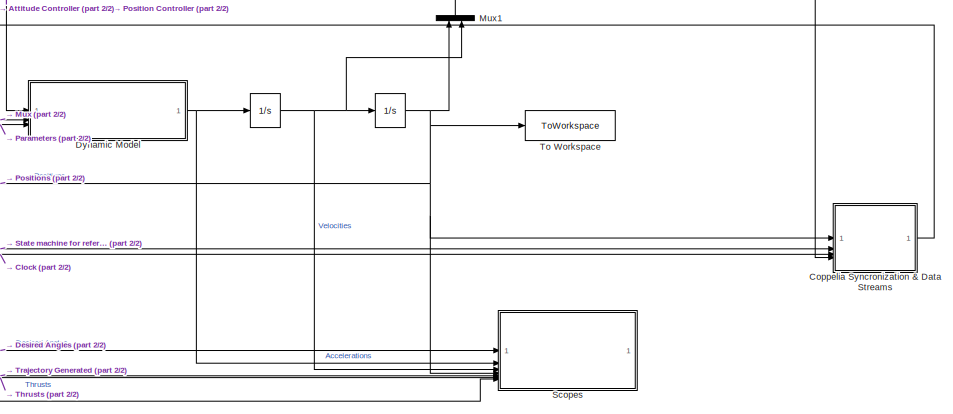
[diagram: root canvas - part 1/2, middle right region]
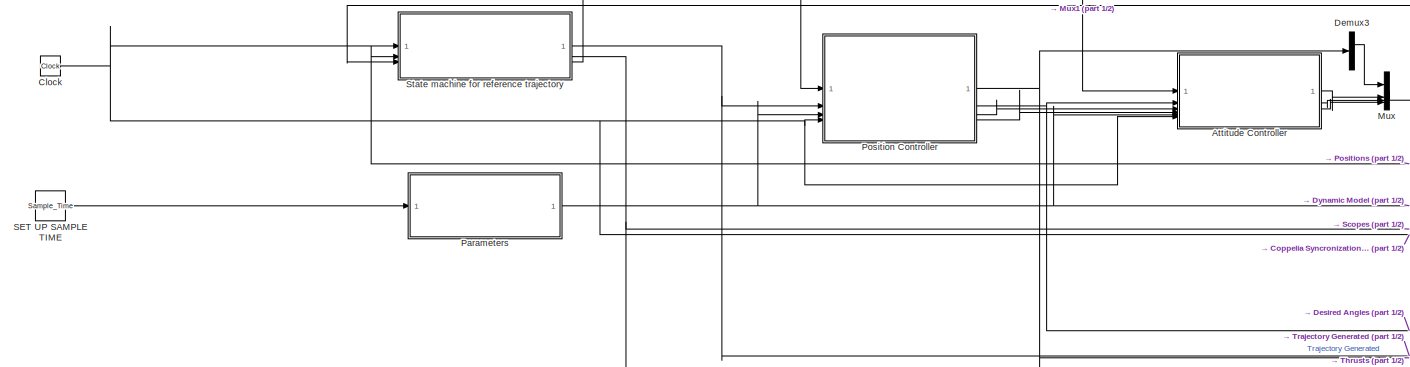
[diagram: root canvas - part 2/2, middle left region]
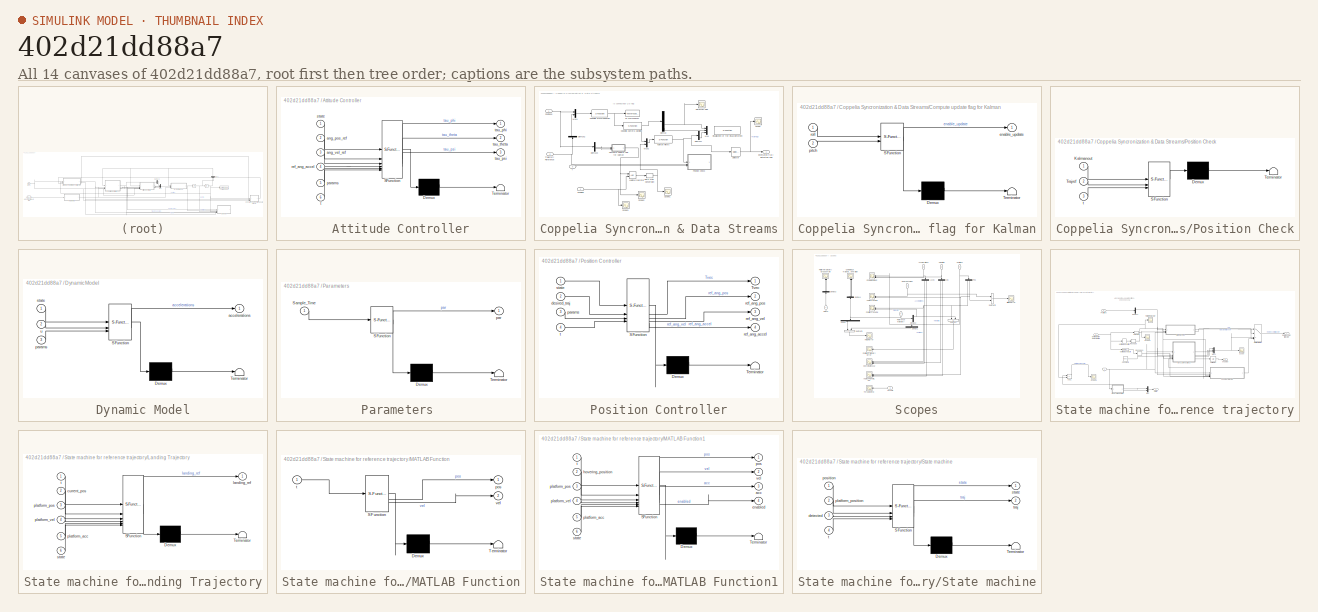
[diagram: thumbnail index - all 14 canvases of the model, root first then tree order]
MODEL slx_402d21dd88a7
KIND model
CONFIG AbsTol = auto
CONFIG EnableMultiTasking = off
CONFIG FixedStep = Sample_Time
CONFIG InitFcn = addpath(genpath(fileparts(which(bdroot))));\n[cspar, ccpar, ckpar] = s_params();
CONFIG MaxStep = auto
CONFIG MinStep = auto
CONFIG RelTol = 1e-3
CONFIG SampleTimeConstraint = Unconstrained
CONFIG SolverName = ode4
CONFIG StartTime = 0.0
CONFIG StopTime = 80
WORKSPACE source: external: MATLAB File  (data not in archive)
BLOCK [Integrator]  
  InitialCondition = [0 0 0 0 0 0]
BLOCK [Integrator]   
  InitialCondition = [0 0 0 0 0 0]
BLOCK [SubSystem] Attitude Controller
  ErrorFcn = Stateflow.Translate.translate
  PermitHierarchicalResolution = ExplicitOnly
  SFBlockType = MATLAB Function
  SystemSampleTime = Sample_Time
  TreatAsAtomicUnit = on
BLOCK [Demux] Attitude Controller/ Demux 
  Outputs = 1
BLOCK [S-Function] Attitude Controller/ SFunction 
  EnableBusSupport = on
  FunctionName = sf_sfun
  PortCounts = [6 4]
  SFcnIsStateOwnerBlock = off
  SFunctionDeploymentMode = off
  Tag = Stateflow S-Function 4
BLOCK [Terminator] Attitude Controller/ Terminator 
BLOCK [Inport] Attitude Controller/ang_pos_ref
  Port = 2
BLOCK [Inport] Attitude Controller/ang_vel_ref
  Port = 3
BLOCK [Inport] Attitude Controller/params
  Port = 5
BLOCK [Inport] Attitude Controller/ref_ang_accel
  Port = 4
BLOCK [Inport] Attitude Controller/state
BLOCK [Inport] Attitude Controller/t
  Port = 6
BLOCK [Outport] Attitude Controller/tau_phi
BLOCK [Outport] Attitude Controller/tau_psi
  Port = 3
BLOCK [Outport] Attitude Controller/tau_theta
  Port = 2
BLOCK [Clock] Clock
  Decimation = 1
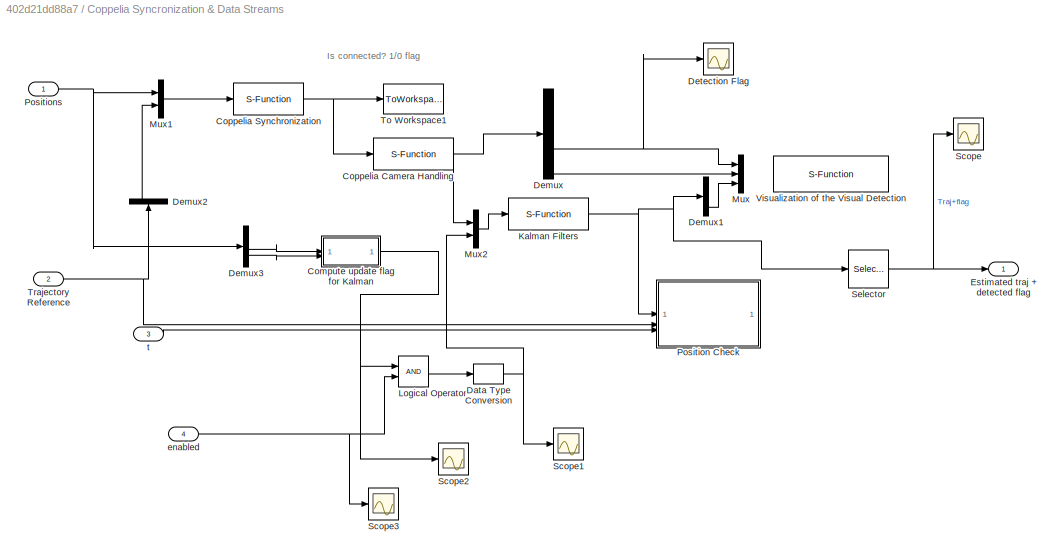
BLOCK [SubSystem] Coppelia Syncronization & Data Streams
BLOCK [SubSystem] Coppelia Syncronization & Data Streams/Compute update flag for Kalman
  ErrorFcn = Stateflow.Translate.translate
  PermitHierarchicalResolution = ExplicitOnly
  SFBlockType = MATLAB Function
  SystemSampleTime = Sample_Time
  TreatAsAtomicUnit = on
BLOCK [Demux] Coppelia Syncronization & Data Streams/Compute update flag for Kalman/ Demux 
  Outputs = 1
BLOCK [S-Function] Coppelia Syncronization & Data Streams/Compute update flag for Kalman/ SFunction 
  EnableBusSupport = on
  FunctionName = sf_sfun
  PortCounts = [2 2]
  SFcnIsStateOwnerBlock = off
  SFunctionDeploymentMode = off
  Tag = Stateflow S-Function 10
BLOCK [Terminator] Coppelia Syncronization & Data Streams/Compute update flag for Kalman/ Terminator 
BLOCK [Outport] Coppelia Syncronization & Data Streams/Compute update flag for Kalman/enable_update
BLOCK [Inport] Coppelia Syncronization & Data Streams/Compute update flag for Kalman/pitch
  Port = 2
BLOCK [Inport] Coppelia Syncronization & Data Streams/Compute update flag for Kalman/roll
BLOCK [S-Function] Coppelia Syncronization & Data Streams/Coppelia Camera Handling
  EnableBusSupport = off
  FunctionName = coppelia_camera
  Parameters = ccpar
  Priority = 1
  SFcnIsStateOwnerBlock = off
  SFunctionDeploymentMode = off
BLOCK [S-Function] Coppelia Syncronization & Data Streams/Coppelia Synchronization
  EnableBusSupport = off
  FunctionName = coppelia_sync
  Parameters = cspar
  Priority = -1
  SFcnIsStateOwnerBlock = off
  SFunctionDeploymentMode = off
BLOCK [DataTypeConversion] Coppelia Syncronization & Data Streams/Data Type Conversion
  OutDataTypeStr = double
  RndMeth = Floor
  SaturateOnIntegerOverflow = off
BLOCK [Demux] Coppelia Syncronization & Data Streams/Demux
  Outputs = 5
BLOCK [Demux] Coppelia Syncronization & Data Streams/Demux1
  Outputs = 8
BLOCK [Demux] Coppelia Syncronization & Data Streams/Demux2
  NameLocation = right
  Outputs = 2
BLOCK [Demux] Coppelia Syncronization & Data Streams/Demux3
  Outputs = 6
BLOCK [Scope] Coppelia Syncronization & Data Streams/Detection Flag
  Floating = off
  NumInputPorts = 1
  ScopeSpecificationString = Simulink.scopes.TimeScopeBlockCfg('CurrentConfiguration', extmgr.ConfigurationSet(extmgr.Configuration('Core','General UI',true,'FigureColor',[0.129411764705882 0.129411764705882 0.129411764705882]),extmgr.Configuration('Core','Source UI',true),extmgr.Configuration('Sources','WiredSimulink',true,'DataLoggingVariableName','ScopeData5'),extmgr.Configuration('Visuals','Time Domain',true,'SerializedDi...<+1799ch>
BLOCK [Outport] Coppelia Syncronization & Data Streams/Estimated traj + detected flag
BLOCK [S-Function] Coppelia Syncronization & Data Streams/Kalman Filters
  EnableBusSupport = off
  FunctionName = coppelia_kalman
  Parameters = ckpar
  Priority = 1
  SFcnIsStateOwnerBlock = off
  SFunctionDeploymentMode = off
BLOCK [Logic] Coppelia Syncronization & Data Streams/Logical Operator
  AllPortsSameDT = off
  OutDataTypeStr = boolean
BLOCK [Mux] Coppelia Syncronization & Data Streams/Mux
  DisplayOption = bar
  Inputs = 3
BLOCK [Mux] Coppelia Syncronization & Data Streams/Mux1
  DisplayOption = bar
  Inputs = 2
BLOCK [Mux] Coppelia Syncronization & Data Streams/Mux2
  DisplayOption = bar
  Inputs = 2
BLOCK [SubSystem] Coppelia Syncronization & Data Streams/Position Check
  ErrorFcn = Stateflow.Translate.translate
  PermitHierarchicalResolution = ExplicitOnly
  SFBlockType = MATLAB Function
  SystemSampleTime = Sample_Time
  TreatAsAtomicUnit = on
BLOCK [Demux] Coppelia Syncronization & Data Streams/Position Check/ Demux 
  Outputs = 1
BLOCK [S-Function] Coppelia Syncronization & Data Streams/Position Check/ SFunction 
  EnableBusSupport = on
  FunctionName = sf_sfun
  PortCounts = [3 1]
  SFcnIsStateOwnerBlock = off
  SFunctionDeploymentMode = off
  Tag = Stateflow S-Function 7
BLOCK [Terminator] Coppelia Syncronization & Data Streams/Position Check/ Terminator 
BLOCK [Inport] Coppelia Syncronization & Data Streams/Position Check/Kalmanout
BLOCK [Inport] Coppelia Syncronization & Data Streams/Position Check/Trajref
  Port = 2
BLOCK [Inport] Coppelia Syncronization & Data Streams/Position Check/t
  Port = 3
BLOCK [Inport] Coppelia Syncronization & Data Streams/Positions
BLOCK [Scope] Coppelia Syncronization & Data Streams/Scope
  Floating = off
  NumInputPorts = 1
  ScopeSpecificationString = Simulink.scopes.TimeScopeBlockCfg('CurrentConfiguration', extmgr.ConfigurationSet(extmgr.Configuration('Core','General UI',true),extmgr.Configuration('Core','Source UI',true),extmgr.Configuration('Sources','WiredSimulink',true,'DataLoggingVariableName','ScopeData2'),extmgr.Configuration('Visuals','Time Domain',true,'SerializedDisplays',{struct('MinYLimReal','-18.46074','MaxYLimReal','19.29827','YL...<+1633ch>
BLOCK [Scope] Coppelia Syncronization & Data Streams/Scope1
  Floating = off
  NumInputPorts = 1
  ScopeSpecificationString = Simulink.scopes.TimeScopeBlockCfg('CurrentConfiguration', extmgr.ConfigurationSet(extmgr.Configuration('Core','General UI',true),extmgr.Configuration('Core','Source UI',true),extmgr.Configuration('Sources','WiredSimulink',true,'DataLoggingVariableName','ScopeData4'),extmgr.Configuration('Visuals','Time Domain',true,'SerializedDisplays',{struct('MinYLimReal','-0.125','MaxYLimReal','1.125','YLabelRe...<+1498ch>
BLOCK [Scope] Coppelia Syncronization & Data Streams/Scope2
  Floating = off
  NumInputPorts = 1
  ScopeSpecificationString = Simulink.scopes.TimeScopeBlockCfg('CurrentConfiguration', extmgr.ConfigurationSet(extmgr.Configuration('Core','General UI',true),extmgr.Configuration('Core','Source UI',true),extmgr.Configuration('Sources','WiredSimulink',true,'DataLoggingVariableName','ScopeData5'),extmgr.Configuration('Visuals','Time Domain',true,'SerializedDisplays',{struct('MinYLimReal','-0.125','MaxYLimReal','1.125','YLabelRe...<+1507ch>
BLOCK [Scope] Coppelia Syncronization & Data Streams/Scope3
  Floating = off
  NumInputPorts = 1
  ScopeSpecificationString = Simulink.scopes.TimeScopeBlockCfg('CurrentConfiguration', extmgr.ConfigurationSet(extmgr.Configuration('Core','General UI',true),extmgr.Configuration('Core','Source UI',true),extmgr.Configuration('Sources','WiredSimulink',true,'DataLoggingVariableName','ScopeData6'),extmgr.Configuration('Visuals','Time Domain',true,'SerializedDisplays',{struct('MinYLimReal','-0.125','MaxYLimReal','1.125','YLabelRe...<+1485ch>
BLOCK [Selector] Coppelia Syncronization & Data Streams/Selector
  IndexOptions = Index vector (dialog)
  Indices = 1:7
  InputPortWidth = 8
  OutputSizes = 1
BLOCK [ToWorkspace] Coppelia Syncronization & Data Streams/To Workspace1
  MaxDataPoints = inf
  SampleTime = -1
  SaveFormat = Timeseries
  VariableName = connflag
BLOCK [Inport] Coppelia Syncronization & Data Streams/Trajectory Reference
  Port = 2
BLOCK [S-Function] Coppelia Syncronization & Data Streams/Visualization of the Visual Detection
  Commented = on
  EnableBusSupport = off
  FunctionName = visualize_detection
  SFcnIsStateOwnerBlock = off
  SFunctionDeploymentMode = off
BLOCK [Inport] Coppelia Syncronization & Data Streams/enabled
  Port = 4
BLOCK [Inport] Coppelia Syncronization & Data Streams/t
  Port = 3
BLOCK [Demux] Demux3
BLOCK [SubSystem] Dynamic Model
  ErrorFcn = Stateflow.Translate.translate
  PermitHierarchicalResolution = ExplicitOnly
  SFBlockType = MATLAB Function
  TreatAsAtomicUnit = on
BLOCK [Demux] Dynamic Model/ Demux 
  Outputs = 1
BLOCK [S-Function] Dynamic Model/ SFunction 
  EnableBusSupport = on
  FunctionName = sf_sfun
  PortCounts = [3 2]
  SFcnIsStateOwnerBlock = off
  SFunctionDeploymentMode = off
  Tag = Stateflow S-Function 5
BLOCK [Terminator] Dynamic Model/ Terminator 
BLOCK [Outport] Dynamic Model/accelerations
BLOCK [Inport] Dynamic Model/params
  Port = 3
BLOCK [Inport] Dynamic Model/state
BLOCK [Inport] Dynamic Model/u
  Port = 2
BLOCK [Mux] Mux
  DisplayOption = bar
BLOCK [Mux] Mux1
  DisplayOption = bar
  Inputs = 2
  NameLocation = right
BLOCK [SubSystem] Parameters 
  ErrorFcn = Stateflow.Translate.translate
  PermitHierarchicalResolution = ExplicitOnly
  SFBlockType = MATLAB Function
  SystemSampleTime = Sample_Time
  TreatAsAtomicUnit = on
BLOCK [Demux] Parameters / Demux 
  Outputs = 1
BLOCK [S-Function] Parameters / SFunction 
  EnableBusSupport = on
  FunctionName = sf_sfun
  PortCounts = [1 2]
  SFcnIsStateOwnerBlock = off
  SFunctionDeploymentMode = off
  Tag = Stateflow S-Function 3
BLOCK [Terminator] Parameters / Terminator 
BLOCK [Inport] Parameters /Sample_Time
BLOCK [Outport] Parameters /par
BLOCK [SubSystem] Position Controller
  ErrorFcn = Stateflow.Translate.translate
  PermitHierarchicalResolution = ExplicitOnly
  SFBlockType = MATLAB Function
  SystemSampleTime = Sample_Time
  TreatAsAtomicUnit = on
BLOCK [Demux] Position Controller/ Demux 
  Outputs = 1
BLOCK [S-Function] Position Controller/ SFunction 
  EnableBusSupport = on
  FunctionName = sf_sfun
  PortCounts = [4 5]
  SFcnIsStateOwnerBlock = off
  SFunctionDeploymentMode = off
  Tag = Stateflow S-Function 2
BLOCK [Terminator] Position Controller/ Terminator 
BLOCK [Outport] Position Controller/Tvec
BLOCK [Inport] Position Controller/desired_traj
  Port = 2
BLOCK [Inport] Position Controller/params
  Port = 3
BLOCK [Outport] Position Controller/ref_ang_accel
  Port = 4
BLOCK [Outport] Position Controller/ref_ang_pos
  Port = 2
BLOCK [Outport] Position Controller/ref_ang_vel
  Port = 3
BLOCK [Inport] Position Controller/state
BLOCK [Inport] Position Controller/t
  Port = 4
BLOCK [Constant] SET UP SAMPLE TIME
  Value = Sample_Time
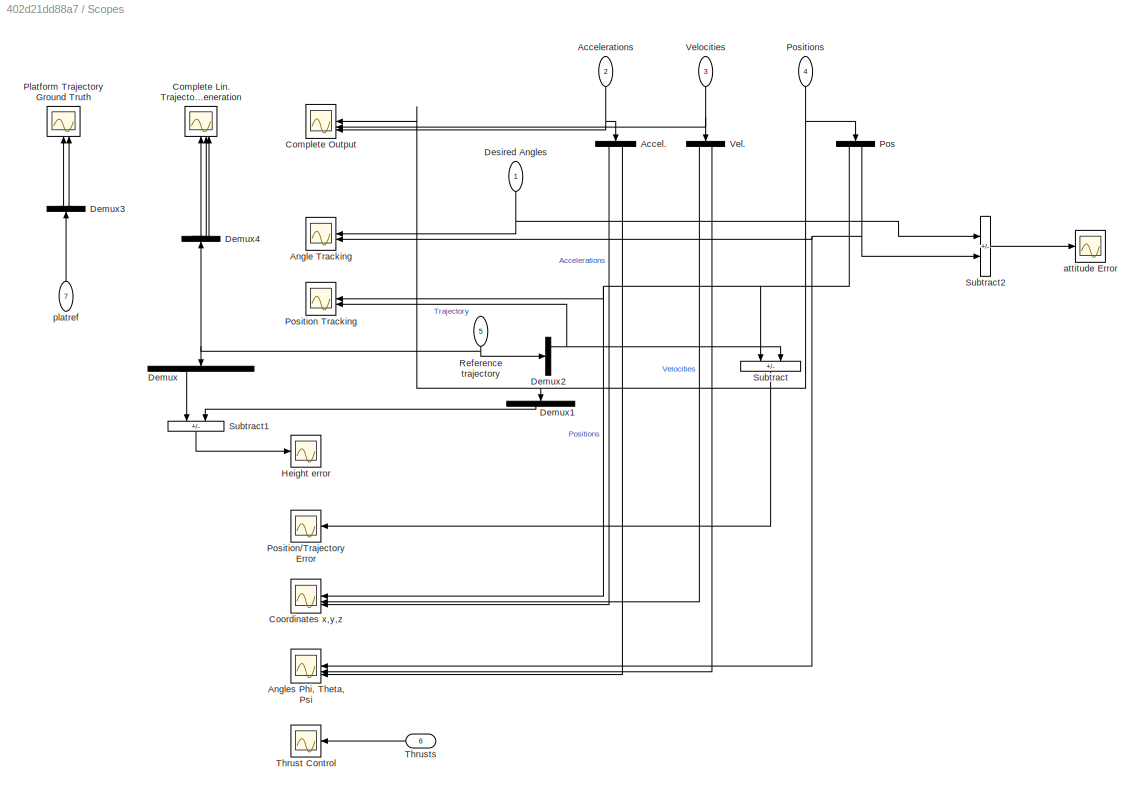
BLOCK [SubSystem] Scopes
BLOCK [Demux] Scopes/Accel.
  NameLocation = left
  Outputs = 2
  Tag = Accelerations
BLOCK [Inport] Scopes/Accelerations
  NameLocation = left
  Port = 2
BLOCK [Scope] Scopes/Angle Tracking
  Floating = off
  NameLocation = top
  NumInputPorts = 2
  ScopeSpecificationString = Simulink.scopes.TimeScopeBlockCfg('CurrentConfiguration', extmgr.ConfigurationSet(extmgr.Configuration('Core','General UI',true,'FigureColor',[0.129411764705882 0.129411764705882 0.129411764705882]),extmgr.Configuration('Core','Source UI',true),extmgr.Configuration('Sources','WiredSimulink',true,'DataLoggingVariableName','ScopeData1'),extmgr.Configuration('Visuals','Time Domain',true,'SerializedDi...<+3351ch>
BLOCK [Scope] Scopes/Angles Phi, Theta, Psi
  Floating = off
  NameLocation = top
  NumInputPorts = 3
  ScopeSpecificationString = Simulink.scopes.TimeScopeBlockCfg('CurrentConfiguration', extmgr.ConfigurationSet(extmgr.Configuration('Core','General UI',true),extmgr.Configuration('Core','Source UI',true),extmgr.Configuration('Sources','WiredSimulink',true,'DataLoggingVariableName','ScopeData2','SampleTime','Sample_Time'),extmgr.Configuration('Visuals','Time Domain',true,'InputProcessing','FrameProcessing','SerializedDisplays'...<+3243ch>
BLOCK [Scope] Scopes/Complete Lin. Trajectory Generation
  Floating = off
  NameLocation = right
  NumInputPorts = 3
  ScopeSpecificationString = Simulink.scopes.TimeScopeBlockCfg('CurrentConfiguration', extmgr.ConfigurationSet(extmgr.Configuration('Core','General UI',true,'FigureColor',[0.129411764705882 0.129411764705882 0.129411764705882]),extmgr.Configuration('Core','Source UI',true),extmgr.Configuration('Sources','WiredSimulink',true),extmgr.Configuration('Visuals','Time Domain',true,'SerializedDisplays',{struct('MinYLimReal','-17.6224...<+4540ch>
BLOCK [Scope] Scopes/Complete Output
  Floating = off
  NameLocation = top
  NumInputPorts = 3
  ScopeSpecificationString = Simulink.scopes.TimeScopeBlockCfg('CurrentConfiguration', extmgr.ConfigurationSet(extmgr.Configuration('Core','General UI',true),extmgr.Configuration('Core','Source UI',true),extmgr.Configuration('Sources','WiredSimulink',true,'DataLoggingVariableName','ScopeData3','SampleTime','Sample_Time'),extmgr.Configuration('Visuals','Time Domain',true,'InputProcessing','FrameProcessing','SerializedDisplays'...<+3426ch>
BLOCK [Scope] Scopes/Coordinates x,y,z
  Floating = off
  NameLocation = top
  NumInputPorts = 3
  ScopeSpecificationString = Simulink.scopes.TimeScopeBlockCfg('CurrentConfiguration', extmgr.ConfigurationSet(extmgr.Configuration('Core','General UI',true,'FigureColor',[0.129411764705882 0.129411764705882 0.129411764705882]),extmgr.Configuration('Core','Source UI',true),extmgr.Configuration('Sources','WiredSimulink',true,'DataLoggingVariableName','ScopeData1','SampleTime','Sample_Time'),extmgr.Configuration('Visuals','Time...<+4657ch>
BLOCK [Demux] Scopes/Demux
  NameLocation = left
  Outputs = 9
BLOCK [Demux] Scopes/Demux1
  NameLocation = left
  Outputs = 6
BLOCK [Demux] Scopes/Demux2
  Outputs = 3
BLOCK [Demux] Scopes/Demux3
  NameLocation = right
  Outputs = 2
BLOCK [Demux] Scopes/Demux4
  NameLocation = right
  Outputs = 3
BLOCK [Inport] Scopes/Desired Angles
  NameLocation = left
BLOCK [Scope] Scopes/Height error
  Floating = off
  NumInputPorts = 1
  ScopeSpecificationString = Simulink.scopes.TimeScopeBlockCfg('CurrentConfiguration', extmgr.ConfigurationSet(extmgr.Configuration('Core','General UI',true,'DisplayFullSourceName',false,'ShowMainToolbar',true,'FigureColor',[0.129411764705882 0.129411764705882 0.129411764705882]),extmgr.Configuration('Sources','WiredSimulink',true,'DataLogging',false,'DataLoggingVariableName','ScopeData6','DataLoggingLimitDataPoints',false,'D...<+2256ch>
BLOCK [Scope] Scopes/Platform Trajectory Ground Truth
  Floating = off
  NameLocation = right
  NumInputPorts = 2
  ScopeSpecificationString = Simulink.scopes.TimeScopeBlockCfg('CurrentConfiguration', extmgr.ConfigurationSet(extmgr.Configuration('Core','General UI',true,'DisplayFullSourceName',false,'ShowMainToolbar',true,'FigureColor',[0.129411764705882 0.129411764705882 0.129411764705882]),extmgr.Configuration('Sources','WiredSimulink',true,'DataLogging',false,'DataLoggingVariableName','ScopeData8','DataLoggingLimitDataPoints',false,'D...<+3015ch>
BLOCK [Demux] Scopes/Pos
  NameLocation = left
  Outputs = 2
BLOCK [Scope] Scopes/Position Tracking
  Floating = off
  NameLocation = top
  NumInputPorts = 2
  ScopeSpecificationString = Simulink.scopes.TimeScopeBlockCfg('CurrentConfiguration', extmgr.ConfigurationSet(extmgr.Configuration('Core','General UI',true,'FigureColor',[0.129411764705882 0.129411764705882 0.129411764705882]),extmgr.Configuration('Core','Source UI',true),extmgr.Configuration('Sources','WiredSimulink',true,'DataLoggingVariableName','ScopeData1','SampleTime','Sample_Time'),extmgr.Configuration('Visuals','Time...<+3374ch>
BLOCK [Scope] Scopes/Position//Trajectory Error
  Floating = off
  NameLocation = top
  NumInputPorts = 1
  ScopeSpecificationString = Simulink.scopes.TimeScopeBlockCfg('CurrentConfiguration', extmgr.ConfigurationSet(extmgr.Configuration('Core','General UI',true,'FigureColor',[0.129411764705882 0.129411764705882 0.129411764705882]),extmgr.Configuration('Core','Source UI',true),extmgr.Configuration('Sources','WiredSimulink',true,'DataLoggingVariableName','ScopeData1'),extmgr.Configuration('Visuals','Time Domain',true,'SerializedDi...<+1877ch>
BLOCK [Inport] Scopes/Positions
  NameLocation = left
  Port = 4
BLOCK [Inport] Scopes/Reference trajectory
  NameLocation = left
  Port = 5
BLOCK [Sum] Scopes/Subtract
  IconShape = rectangular
  Inputs = +-
  NameLocation = left
BLOCK [Sum] Scopes/Subtract1
  IconShape = rectangular
  Inputs = +-
  NameLocation = left
BLOCK [Sum] Scopes/Subtract2
  IconShape = rectangular
  Inputs = +-
BLOCK [Scope] Scopes/Thrust Control
  Floating = off
  NameLocation = top
  NumInputPorts = 1
  ScopeSpecificationString = Simulink.scopes.TimeScopeBlockCfg('CurrentConfiguration', extmgr.ConfigurationSet(extmgr.Configuration('Core','General UI',true,'FigureColor',[0.129411764705882 0.129411764705882 0.129411764705882]),extmgr.Configuration('Core','Source UI',true),extmgr.Configuration('Sources','WiredSimulink',true,'DataLoggingVariableName','ScopeData7'),extmgr.Configuration('Visuals','Time Domain',true,'SerializedDi...<+2266ch>
BLOCK [Inport] Scopes/Thrusts
  NameLocation = top
  Port = 6
BLOCK [Demux] Scopes/Vel.
  NameLocation = left
  Outputs = 2
BLOCK [Inport] Scopes/Velocities
  NameLocation = left
  Port = 3
BLOCK [Scope] Scopes/attitude Error
  Floating = off
  NumInputPorts = 1
  ScopeSpecificationString = Simulink.scopes.TimeScopeBlockCfg('CurrentConfiguration', extmgr.ConfigurationSet(extmgr.Configuration('Core','General UI',true,'FigureColor',[0.129411764705882 0.129411764705882 0.129411764705882]),extmgr.Configuration('Core','Source UI',true),extmgr.Configuration('Sources','WiredSimulink',true,'DataLoggingVariableName','ScopeData2'),extmgr.Configuration('Visuals','Time Domain',true,'SerializedDi...<+1895ch>
BLOCK [Inport] Scopes/platref
  NameLocation = right
  Port = 7
BLOCK [SubSystem] State machine for reference trajectory
BLOCK [Sum] State machine for reference trajectory/Add1
  IconShape = rectangular
  Inputs = +-
BLOCK [Constant] State machine for reference trajectory/Constant1
  Value = [0 0 0]
BLOCK [Demux] State machine for reference trajectory/Demux4
  Outputs = 2
BLOCK [Inport] State machine for reference trajectory/Estimated traj + detected flag
  Port = 3
BLOCK [SubSystem] State machine for reference trajectory/Landing Trajectory
  ErrorFcn = Stateflow.Translate.translate
  PermitHierarchicalResolution = ExplicitOnly
  SFBlockType = MATLAB Function
  SystemSampleTime = Sample_Time
  TreatAsAtomicUnit = on
BLOCK [Demux] State machine for reference trajectory/Landing Trajectory/ Demux 
  Outputs = 1
BLOCK [S-Function] State machine for reference trajectory/Landing Trajectory/ SFunction 
  EnableBusSupport = on
  FunctionName = sf_sfun
  PortCounts = [6 2]
  SFcnIsStateOwnerBlock = off
  SFunctionDeploymentMode = off
  Tag = Stateflow S-Function 9
BLOCK [Terminator] State machine for reference trajectory/Landing Trajectory/ Terminator 
BLOCK [Inport] State machine for reference trajectory/Landing Trajectory/current_pos
  Port = 2
BLOCK [Outport] State machine for reference trajectory/Landing Trajectory/landing_ref
BLOCK [Inport] State machine for reference trajectory/Landing Trajectory/platform_acc
  Port = 5
BLOCK [Inport] State machine for reference trajectory/Landing Trajectory/platform_pos
  Port = 3
BLOCK [Inport] State machine for reference trajectory/Landing Trajectory/platform_vel
  Port = 4
BLOCK [Inport] State machine for reference trajectory/Landing Trajectory/state
  Port = 6
BLOCK [Inport] State machine for reference trajectory/Landing Trajectory/t
BLOCK [SubSystem] State machine for reference trajectory/MATLAB Function
  ErrorFcn = Stateflow.Translate.translate
  PermitHierarchicalResolution = ExplicitOnly
  SFBlockType = MATLAB Function
  TreatAsAtomicUnit = on
BLOCK [Demux] State machine for reference trajectory/MATLAB Function/ Demux 
  Outputs = 1
BLOCK [S-Function] State machine for reference trajectory/MATLAB Function/ SFunction 
  EnableBusSupport = on
  FunctionName = sf_sfun
  PortCounts = [1 3]
  SFcnIsStateOwnerBlock = off
  SFunctionDeploymentMode = off
  Tag = Stateflow S-Function 8
BLOCK [Terminator] State machine for reference trajectory/MATLAB Function/ Terminator 
BLOCK [Outport] State machine for reference trajectory/MATLAB Function/pos
BLOCK [Inport] State machine for reference trajectory/MATLAB Function/t
BLOCK [Outport] State machine for reference trajectory/MATLAB Function/vel
  Port = 2
BLOCK [SubSystem] State machine for reference trajectory/MATLAB Function1
  ErrorFcn = Stateflow.Translate.translate
  PermitHierarchicalResolution = ExplicitOnly
  SFBlockType = MATLAB Function
  SystemSampleTime = Sample_Time
  TreatAsAtomicUnit = on
BLOCK [Demux] State machine for reference trajectory/MATLAB Function1/ Demux 
  Outputs = 1
BLOCK [S-Function] State machine for reference trajectory/MATLAB Function1/ SFunction 
  EnableBusSupport = on
  FunctionName = sf_sfun
  PortCounts = [6 5]
  SFcnIsStateOwnerBlock = off
  SFunctionDeploymentMode = off
  Tag = Stateflow S-Function 1
BLOCK [Terminator] State machine for reference trajectory/MATLAB Function1/ Terminator 
BLOCK [Outport] State machine for reference trajectory/MATLAB Function1/acc
  Port = 3
BLOCK [Outport] State machine for reference trajectory/MATLAB Function1/enabled
  Port = 4
BLOCK [Inport] State machine for reference trajectory/MATLAB Function1/hovering_position
  Port = 2
BLOCK [Inport] State machine for reference trajectory/MATLAB Function1/platform_acc
  Port = 5
BLOCK [Inport] State machine for reference trajectory/MATLAB Function1/platform_pos
  Port = 3
BLOCK [Inport] State machine for reference trajectory/MATLAB Function1/platform_vel
  Port = 4
BLOCK [Outport] State machine for reference trajectory/MATLAB Function1/pos
BLOCK [Inport] State machine for reference trajectory/MATLAB Function1/state
  Port = 6
BLOCK [Inport] State machine for reference trajectory/MATLAB Function1/t
BLOCK [Outport] State machine for reference trajectory/MATLAB Function1/vel
  Port = 2
BLOCK [MultiPortSwitch] State machine for reference trajectory/Multiport Switch
  InputSameDT = off
  Inputs = 4
  SaturateOnIntegerOverflow = off
BLOCK [Mux] State machine for reference trajectory/Mux
  DisplayOption = bar
  Inputs = 2
BLOCK [Mux] State machine for reference trajectory/Mux1
  DisplayOption = bar
  Inputs = 3
BLOCK [Scope] State machine for reference trajectory/Platform Trajectory
  Floating = off
  NumInputPorts = 1
  ScopeSpecificationString = Simulink.scopes.TimeScopeBlockCfg('CurrentConfiguration', extmgr.ConfigurationSet(extmgr.Configuration('Core','General UI',true,'FigureColor',[0.129411764705882 0.129411764705882 0.129411764705882]),extmgr.Configuration('Core','Source UI',true),extmgr.Configuration('Sources','WiredSimulink',true,'DataLoggingVariableName','ScopeData4'),extmgr.Configuration('Visuals','Time Domain',true,'SerializedDi...<+2099ch>
BLOCK [Inport] State machine for reference trajectory/Positions
  Port = 2
BLOCK [Outport] State machine for reference trajectory/Reference for trajectory
BLOCK [Reshape] State machine for reference trajectory/Reshape
  OutputDimensionality = Row vector (2-D)
BLOCK [Reshape] State machine for reference trajectory/Reshape1
  OutputDimensionality = Row vector (2-D)
BLOCK [Scope] State machine for reference trajectory/Scope
  Floating = off
  NumInputPorts = 1
  ScopeSpecificationString = Simulink.scopes.TimeScopeBlockCfg('CurrentConfiguration', extmgr.ConfigurationSet(extmgr.Configuration('Core','General UI',true),extmgr.Configuration('Core','Source UI',true),extmgr.Configuration('Sources','WiredSimulink',true,'DataLoggingVariableName','ScopeData1'),extmgr.Configuration('Visuals','Time Domain',true,'SerializedDisplays',{struct('MinYLimReal','-5.01169','MaxYLimReal','7.94318','YLab...<+1963ch>
BLOCK [Scope] State machine for reference trajectory/Scope2
  Floating = off
  NumInputPorts = 1
  ScopeSpecificationString = Simulink.scopes.TimeScopeBlockCfg('CurrentConfiguration', extmgr.ConfigurationSet(extmgr.Configuration('Core','General UI',true),extmgr.Configuration('Core','Source UI',true),extmgr.Configuration('Sources','WiredSimulink',true,'DataLoggingVariableName','ScopeData1'),extmgr.Configuration('Visuals','Time Domain',true,'SerializedDisplays',{struct('MinYLimReal','-0.125','MaxYLimReal','1.125','YLabelRe...<+1545ch>
BLOCK [Scope] State machine for reference trajectory/Scope3
  Floating = off
  NumInputPorts = 1
  ScopeSpecificationString = Simulink.scopes.TimeScopeBlockCfg('CurrentConfiguration', extmgr.ConfigurationSet(extmgr.Configuration('Core','General UI',true),extmgr.Configuration('Core','Source UI',true),extmgr.Configuration('Sources','WiredSimulink',true,'DataLoggingVariableName','ScopeData1'),extmgr.Configuration('Visuals','Time Domain',true,'SerializedDisplays',{struct('MinYLimReal','-1.10941','MaxYLimReal','0.83364','YLab...<+1703ch>
BLOCK [SubSystem] State machine for reference trajectory/State machine
  ErrorFcn = Stateflow.Translate.translate
  PermitHierarchicalResolution = ExplicitOnly
  SFBlockType = MATLAB Function
  SystemSampleTime = Sample_Time
  TreatAsAtomicUnit = on
BLOCK [Demux] State machine for reference trajectory/State machine/ Demux 
  Outputs = 1
BLOCK [S-Function] State machine for reference trajectory/State machine/ SFunction 
  EnableBusSupport = on
  FunctionName = sf_sfun
  PortCounts = [4 3]
  SFcnIsStateOwnerBlock = off
  SFunctionDeploymentMode = off
  Tag = Stateflow S-Function 6
BLOCK [Terminator] State machine for reference trajectory/State machine/ Terminator 
BLOCK [Inport] State machine for reference trajectory/State machine/detected
  Port = 3
BLOCK [Inport] State machine for reference trajectory/State machine/platform_position
  Port = 2
BLOCK [Inport] State machine for reference trajectory/State machine/position
BLOCK [Outport] State machine for reference trajectory/State machine/state
BLOCK [Inport] State machine for reference trajectory/State machine/t
  Port = 4
BLOCK [Outport] State machine for reference trajectory/State machine/traj
  Port = 2
BLOCK [UnitDelay] State machine for reference trajectory/Unit Delay
  HasFrameUpgradeWarning = on
  SampleTime = Sample_Time
BLOCK [Selector] State machine for reference trajectory/detected
  IndexOptions = Index vector (dialog)
  Indices = [7]
  InputPortWidth = 7
  OutputSizes = 1
BLOCK [Outport] State machine for reference trajectory/enabled
  Port = 3
BLOCK [Selector] State machine for reference trajectory/estimated position
  IndexOptions = Index vector (dialog)
  Indices = [1 2 3]
  InputPortWidth = 7
  OutputSizes = 1
BLOCK [Selector] State machine for reference trajectory/estimated velocity
  IndexOptions = Index vector (dialog)
  Indices = 4:6
  InputPortWidth = 7
  OutputSizes = 1
BLOCK [Outport] State machine for reference trajectory/platref
  Port = 2
BLOCK [Inport] State machine for reference trajectory/t
BLOCK [ToWorkspace] To Workspace
  FixptAsFi = on
  MaxDataPoints = inf
  SampleTime = -1
  SaveFormat = Structure With Time
  VariableName = quadrotor_states
ANNOTATION Coppelia Syncronization & Data Streams: Is connected? 1/0 flag
ANNOTATION State machine for reference trajectory: #Exclude the Angular Positions, only keeps X,Y,Z
NET   :1 -> Coppelia Syncronization & Data Streams:1, Mux1:1, Scopes:4, State machine for reference trajectory:2, To Workspace:1
NET  :1 ->   :1, Mux1:2, Scopes:3
LINE Attitude Controller:1 -> Mux:2
LINE Attitude Controller:2 -> Mux:3
LINE Attitude Controller:3 -> Mux:4
NET Clock:1 -> Attitude Controller:6, Coppelia Syncronization & Data Streams:3, Position Controller:4, State machine for reference trajectory:1
NET Coppelia Syncronization & Data Streams/Compute update flag for Kalman:1 -> Coppelia Syncronization & Data Streams/Logical Operator:1, Coppelia Syncronization & Data Streams/Scope2:1
NET Coppelia Syncronization & Data Streams/Coppelia Camera Handling:1 -> Coppelia Syncronization & Data Streams/Demux:1, Coppelia Syncronization & Data Streams/Mux2:1
NET Coppelia Syncronization & Data Streams/Coppelia Synchronization:1 -> Coppelia Syncronization & Data Streams/Coppelia Camera Handling:1, Coppelia Syncronization & Data Streams/To Workspace1:1
NET Coppelia Syncronization & Data Streams/Data Type Conversion:1 -> Coppelia Syncronization & Data Streams/Mux2:2, Coppelia Syncronization & Data Streams/Scope1:1
LINE Coppelia Syncronization & Data Streams/Demux1:7 -> Coppelia Syncronization & Data Streams/Mux:3
LINE Coppelia Syncronization & Data Streams/Demux2:1 -> Coppelia Syncronization & Data Streams/Mux1:2
LINE Coppelia Syncronization & Data Streams/Demux3:4 -> Coppelia Syncronization & Data Streams/Compute update flag for Kalman:1
LINE Coppelia Syncronization & Data Streams/Demux3:5 -> Coppelia Syncronization & Data Streams/Compute update flag for Kalman:2
NET Coppelia Syncronization & Data Streams/Demux:4 -> Coppelia Syncronization & Data Streams/Detection Flag:1, Coppelia Syncronization & Data Streams/Mux:1
LINE Coppelia Syncronization & Data Streams/Demux:5 -> Coppelia Syncronization & Data Streams/Mux:2
NET Coppelia Syncronization & Data Streams/Kalman Filters:1 -> Coppelia Syncronization & Data Streams/Demux1:1, Coppelia Syncronization & Data Streams/Position Check:1, Coppelia Syncronization & Data Streams/Selector:1
LINE Coppelia Syncronization & Data Streams/Logical Operator:1 -> Coppelia Syncronization & Data Streams/Data Type Conversion:1
LINE Coppelia Syncronization & Data Streams/Mux1:1 -> Coppelia Syncronization & Data Streams/Coppelia Synchronization:1
LINE Coppelia Syncronization & Data Streams/Mux2:1 -> Coppelia Syncronization & Data Streams/Kalman Filters:1
NET Coppelia Syncronization & Data Streams/Positions:1 -> Coppelia Syncronization & Data Streams/Demux3:1, Coppelia Syncronization & Data Streams/Mux1:1
NET Coppelia Syncronization & Data Streams/Selector:1 -> Coppelia Syncronization & Data Streams/Estimated traj + detected flag:1, Coppelia Syncronization & Data Streams/Scope:1
NET Coppelia Syncronization & Data Streams/Trajectory Reference:1 -> Coppelia Syncronization & Data Streams/Demux2:1, Coppelia Syncronization & Data Streams/Position Check:2
NET Coppelia Syncronization & Data Streams/enabled:1 -> Coppelia Syncronization & Data Streams/Logical Operator:2, Coppelia Syncronization & Data Streams/Scope3:1
LINE Coppelia Syncronization & Data Streams/t:1 -> Coppelia Syncronization & Data Streams/Position Check:3
LINE Coppelia Syncronization & Data Streams:1 -> State machine for reference trajectory:3
LINE Demux3:1 -> Mux:1
NET Dynamic Model:1 ->  :1, Scopes:2
NET Mux1:1 -> Attitude Controller:1, Dynamic Model:1, Position Controller:1
LINE Mux:1 -> Dynamic Model:2
NET Parameters :1 -> Attitude Controller:5, Dynamic Model:3, Position Controller:3
NET Position Controller:1 -> Demux3:1, Scopes:6
NET Position Controller:2 -> Attitude Controller:2, Scopes:1
LINE Position Controller:3 -> Attitude Controller:3
LINE Position Controller:4 -> Attitude Controller:4
LINE SET UP SAMPLE TIME:1 -> Parameters :1
LINE Scopes/Accel.:1 -> Scopes/Coordinates x,y,z:3
LINE Scopes/Accel.:2 -> Scopes/Angles Phi, Theta, Psi:3
NET Scopes/Accelerations:1 -> Scopes/Accel.:1, Scopes/Complete Output:3
LINE Scopes/Demux1:3 -> Scopes/Subtract1:2
NET Scopes/Demux2:1 -> Scopes/Position Tracking:2, Scopes/Subtract:2
LINE Scopes/Demux3:1 -> Scopes/Platform Trajectory Ground Truth:1
LINE Scopes/Demux3:2 -> Scopes/Platform Trajectory Ground Truth:2
LINE Scopes/Demux4:1 -> Scopes/Complete Lin. Trajectory Generation:1
LINE Scopes/Demux4:2 -> Scopes/Complete Lin. Trajectory Generation:2
LINE Scopes/Demux4:3 -> Scopes/Complete Lin. Trajectory Generation:3
LINE Scopes/Demux:3 -> Scopes/Subtract1:1
NET Scopes/Desired Angles:1 -> Scopes/Angle Tracking:1, Scopes/Subtract2:1
NET Scopes/Pos:1 -> Scopes/Coordinates x,y,z:1, Scopes/Position Tracking:1, Scopes/Subtract:1
NET Scopes/Pos:2 -> Scopes/Angle Tracking:2, Scopes/Angles Phi, Theta, Psi:1, Scopes/Subtract2:2
NET Scopes/Positions:1 -> Scopes/Complete Output:1, Scopes/Demux1:1, Scopes/Pos:1
NET Scopes/Reference trajectory:1 -> Scopes/Demux2:1, Scopes/Demux4:1, Scopes/Demux:1
LINE Scopes/Subtract1:1 -> Scopes/Height error:1
LINE Scopes/Subtract2:1 -> Scopes/attitude Error:1
LINE Scopes/Subtract:1 -> Scopes/Position//Trajectory Error:1
LINE Scopes/Thrusts:1 -> Scopes/Thrust Control:1
LINE Scopes/Vel.:1 -> Scopes/Coordinates x,y,z:2
LINE Scopes/Vel.:2 -> Scopes/Angles Phi, Theta, Psi:2
NET Scopes/Velocities:1 -> Scopes/Complete Output:2, Scopes/Vel.:1
LINE Scopes/platref:1 -> Scopes/Demux3:1
LINE State machine for reference trajectory/Add1:1 -> State machine for reference trajectory/Scope3:1
NET State machine for reference trajectory/Constant1:1 -> State machine for reference trajectory/Landing Trajectory:5, State machine for reference trajectory/MATLAB Function1:5
NET State machine for reference trajectory/Demux4:1 -> State machine for reference trajectory/Landing Trajectory:2, State machine for reference trajectory/MATLAB Function1:2, State machine for reference trajectory/State machine:1
NET State machine for reference trajectory/Estimated traj + detected flag:1 -> State machine for reference trajectory/detected:1, State machine for reference trajectory/estimated position:1, State machine for reference trajectory/estimated velocity:1
LINE State machine for reference trajectory/Landing Trajectory:1 -> State machine for reference trajectory/Multiport Switch:5
LINE State machine for reference trajectory/MATLAB Function1:1 -> State machine for reference trajectory/Mux1:1
LINE State machine for reference trajectory/MATLAB Function1:2 -> State machine for reference trajectory/Mux1:2
LINE State machine for reference trajectory/MATLAB Function1:3 -> State machine for reference trajectory/Mux1:3
LINE State machine for reference trajectory/MATLAB Function1:4 -> State machine for reference trajectory/Unit Delay:1
NET State machine for reference trajectory/MATLAB Function:1 -> State machine for reference trajectory/Add1:1, State machine for reference trajectory/Mux:1
LINE State machine for reference trajectory/MATLAB Function:2 -> State machine for reference trajectory/Mux:2
LINE State machine for reference trajectory/Multiport Switch:1 -> State machine for reference trajectory/Reference for trajectory:1
NET State machine for reference trajectory/Mux1:1 -> State machine for reference trajectory/Multiport Switch:3, State machine for reference trajectory/Scope:1
LINE State machine for reference trajectory/Mux:1 -> State machine for reference trajectory/platref:1
LINE State machine for reference trajectory/Positions:1 -> State machine for reference trajectory/Demux4:1
NET State machine for reference trajectory/Reshape1:1 -> State machine for reference trajectory/Landing Trajectory:4, State machine for reference trajectory/MATLAB Function1:4
NET State machine for reference trajectory/Reshape:1 -> State machine for reference trajectory/Add1:2, State machine for reference trajectory/Landing Trajectory:3, State machine for reference trajectory/MATLAB Function1:3, State machine for reference trajectory/Platform Trajectory:1, State machine for reference trajectory/State machine:2
NET State machine for reference trajectory/State machine:1 -> State machine for reference trajectory/Landing Trajectory:6, State machine for reference trajectory/MATLAB Function1:6, State machine for reference trajectory/Multiport Switch:1
NET State machine for reference trajectory/State machine:2 -> State machine for reference trajectory/Multiport Switch:2, State machine for reference trajectory/Multiport Switch:4
LINE State machine for reference trajectory/Unit Delay:1 -> State machine for reference trajectory/enabled:1
NET State machine for reference trajectory/detected:1 -> State machine for reference trajectory/Scope2:1, State machine for reference trajectory/State machine:3
LINE State machine for reference trajectory/estimated position:1 -> State machine for reference trajectory/Reshape:1
LINE State machine for reference trajectory/estimated velocity:1 -> State machine for reference trajectory/Reshape1:1
NET State machine for reference trajectory/t:1 -> State machine for reference trajectory/Landing Trajectory:1, State machine for reference trajectory/MATLAB Function1:1, State machine for reference trajectory/MATLAB Function:1, State machine for reference trajectory/State machine:4
NET State machine for reference trajectory:1 -> Position Controller:2, Scopes:5
NET State machine for reference trajectory:2 -> Coppelia Syncronization & Data Streams:2, Scopes:7
LINE State machine for reference trajectory:3 -> Coppelia Syncronization & Data Streams:4
note: NET lines group one-source signal fan-out (src -> all destinations, sorted); 1:1 wires keep LINE
CHART State machine for reference trajectory/Landing Trajectory states=1 transitions=1
  STATE_LABEL 'eML_blk_kernel()'
  STATE_LABEL 'SCRIPT:\nfunction landing_ref = landing_trajectory(t, current_pos, platform_pos, platform_vel, platform_acc, state)\n\n[pos, vel, acc] = landing_trajectory(t, current_pos, platform_pos, platform_vel, platform_acc, state);\nlanding_ref = [pos, vel, acc];'
CHART Coppelia Syncronization
& Data Streams/Compute update flag for Kalman states=1 transitions=1
  STATE_LABEL 'eML_blk_kernel()'
  STATE_LABEL 'SCRIPT:\nfunction enable_update = compute_kalman_update_flag(roll, pitch)\n\nenable_update = compute_kalman_update_flag(roll, pitch);'
CHART State machine for reference trajectory/MATLAB Function1 states=1 transitions=1
  STATE_LABEL 'eML_blk_kernel()'
  STATE_LABEL 'SCRIPT:\nfunction [pos, vel, acc, enabled] = smooth_start_tracking(t, hovering_position, platform_pos, platform_vel, platform_acc, state)\n\n[pos, vel, acc, enabled] = smooth_start_tracking(t, hovering_position, platform_pos, platform_vel, platform_acc, state);'
CHART Position Controller states=1 transitions=1
  STATE_LABEL 'eML_blk_kernel()'
  STATE_LABEL 'SCRIPT:\nfunction [Tvec,ref_ang_pos,ref_ang_vel, ref_ang_accel] = pos(state,desired_traj,params,t)\n\n[Tvec,ref_ang_pos,ref_ang_vel, ref_ang_accel] = position_control(desired_traj,state,params);\n\n\n\n'
CHART Parameters  states=1 transitions=1
  STATE_LABEL 'eML_blk_kernel()'
  STATE_LABEL 'SCRIPT:\nfunction par = params(Sample_Time)\n\n[m,g,Ix,Iy,Iz,Kp_pos,Kd_pos,Ki_pos,Kp_ang,Kd_ang,Ki_ang,dt] = model_n_control_param();\n%overwrites the Sample Time with the Environment sample time\ndt=Sample_Time;\npar = [m,g,Ix,Iy,Iz,Kp_pos,Kd_pos,Ki_pos,Kp_ang,Kd_ang,Ki_ang,dt];\n\n'
CHART Attitude Controller states=1 transitions=1
  STATE_LABEL 'eML_blk_kernel()'
  STATE_LABEL 'SCRIPT:\nfunction [tau_phi,tau_theta,tau_psi] = attitude(state,ang_pos_ref,ang_vel_ref,ref_ang_accel,params,t)\n\n[tau_phi,tau_theta,tau_psi] = attitude_control(ang_pos_ref,ang_vel_ref,ref_ang_accel,state,params);\n\n\n\n'
CHART Dynamic Model states=1 transitions=1
  STATE_LABEL 'eML_blk_kernel()'
  STATE_LABEL 'SCRIPT:\nfunction accelerations = dyn(state,u,params)\n\naccelerations = dynamic_model(state, u, params);'
CHART State machine for reference trajectory/State machine states=1 transitions=1
  STATE_LABEL 'eML_blk_kernel()'
  STATE_LABEL 'SCRIPT:\nfunction [state, traj]  = state_manager(position,platform_position, detected, t)\n\n[state, traj] = stateManager(position,platform_position, detected, t);\n'
CHART Coppelia Syncronization
& Data Streams/Position Check states=1 transitions=1
  STATE_LABEL 'eML_blk_kernel()'
  STATE_LABEL "SCRIPT:\nfunction fcn(Kalmanout, Trajref, t)\n\ndetected = Kalmanout(7);\ninitialized = Kalmanout(8);\n\nif initialized && detected && mod(t, 0.1) == 0\n    fprintf('  [REAL POSITION] pos=[%.3f, %.3f, %.3f], vel=[%.3f, %.3f, %.3f]\\n', ...\n        Trajref(1), Trajref(2), Trajref(3), Trajref(4), Trajref(5), Trajref(6));\nend\n\nend"
CHART State machine for reference trajectory/MATLAB Function states=1 transitions=1
  STATE_LABEL 'eML_blk_kernel()'
  STATE_LABEL 'SCRIPT:\nfunction [pos,vel] = platform_trajectory(t)\n\n[pos, vel] = platform_trajectory(t);\n'
CHART  states=0 transitions=0
CHART  states=0 transitions=0
CHART  states=0 transitions=0
CHART  states=0 transitions=0
CHART  states=0 transitions=0
CHART  states=0 transitions=0
CHART  states=0 transitions=0
CHART  states=0 transitions=0
CHART  states=0 transitions=0
CHART  states=0 transitions=0
